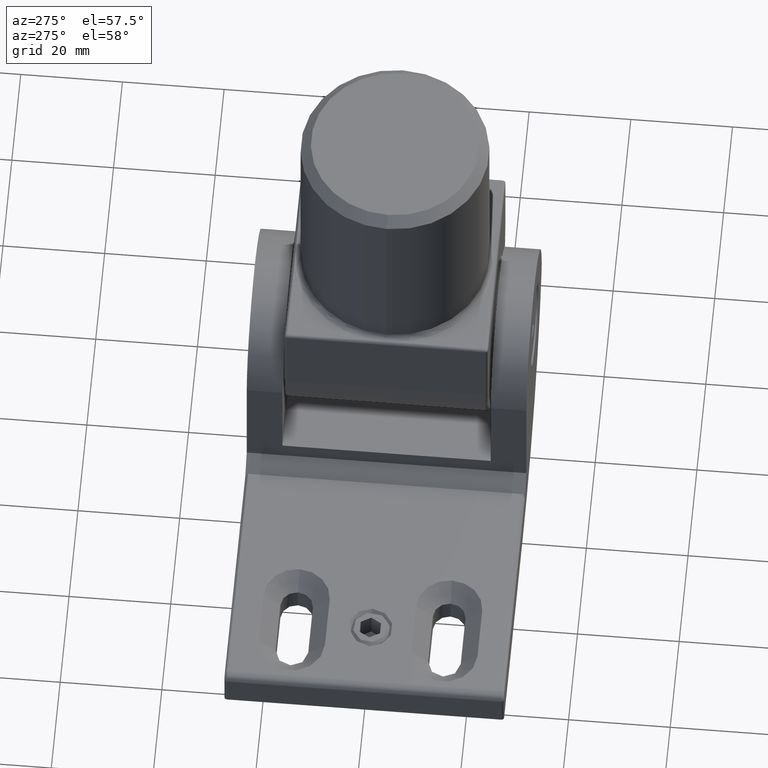
[diagram: clean part render]
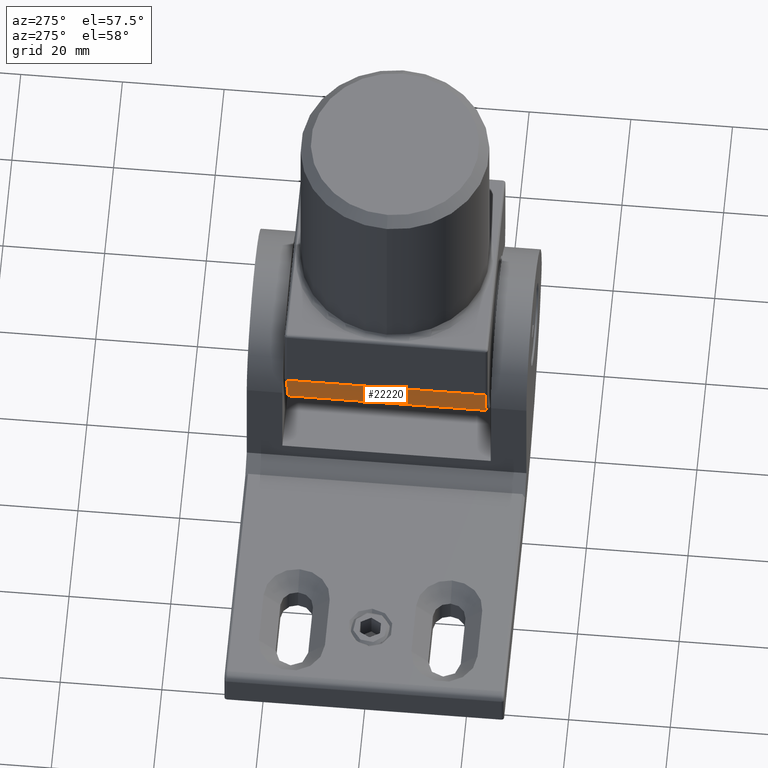
[diagram: same view with one face highlighted and labeled with its STEP entity id]
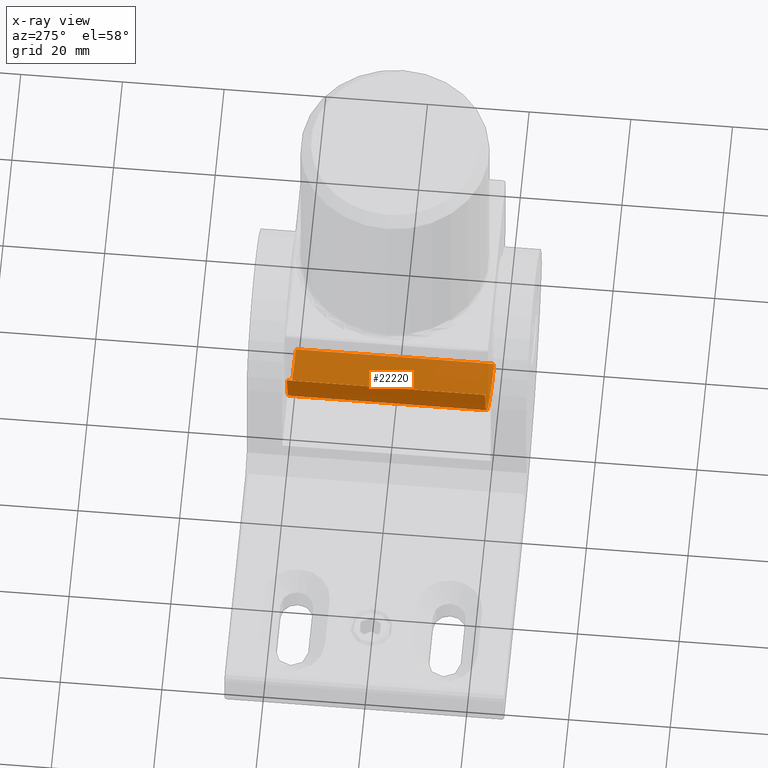
[diagram: x-ray of the same camera — body ghosted, the highlighted face saturated]
A machine part, auxiliary view. The second image highlights one B-rep face of the part: STEP entity #22220.
The next image is the same camera in x-ray: the body ghosted, the highlighted face saturated — about 67% of this face is hidden behind the body in this view.
In plain terms, the highlighted cylindrical surface (partial cylindrical patch) has radius 20 mm, axis along (-0, -1, -0).
Its self-contained STEP definition (entity closure, byte-faithful):
#240 = VECTOR ( 'NONE', #8356, 1000.000000000000000 ) ;
#281 = AXIS2_PLACEMENT_3D ( 'NONE', #11440, #3515, #11097 ) ;
#581 = DIRECTION ( 'NONE',  ( -0.000000000000000000, -1.000000000000000000, -0.000000000000000000 ) ) ;
#807 = ORIENTED_EDGE ( 'NONE', *, *, #5555, .T. ) ;
#819 = CIRCLE ( 'NONE', #281, 20.00000000000000355 ) ;
#2964 = CARTESIAN_POINT ( 'NONE',  ( -20.00000000000000355, 19.50000000000000000, -15.99999999999999645 ) ) ;
#3515 = DIRECTION ( 'NONE',  ( -0.000000000000000000, -1.000000000000000000, -0.000000000000000000 ) ) ;
#4601 = CARTESIAN_POINT ( 'NONE',  ( 0.000000000000000000, -19.50000000000000000, -36.00000000000000000 ) ) ;
#5047 = EDGE_CURVE ( 'NONE', #20888, #7967, #11732, .T. ) ;
#5420 = DIRECTION ( 'NONE',  ( 0.000000000000000000, 0.000000000000000000, 1.000000000000000000 ) ) ;
#5555 = EDGE_CURVE ( 'NONE', #20888, #24237, #819, .T. ) ;
#5677 = CIRCLE ( 'NONE', #9962, 20.00000000000000355 ) ;
#6020 = EDGE_CURVE ( 'NONE', #11799, #7967, #5677, .T. ) ;
#7257 = VECTOR ( 'NONE', #17697, 1000.000000000000000 ) ;
#7967 = VERTEX_POINT ( 'NONE', #10529 ) ;
#8356 = DIRECTION ( 'NONE',  ( -0.000000000000000000, -1.000000000000000000, -0.000000000000000000 ) ) ;
#9962 = AXIS2_PLACEMENT_3D ( 'NONE', #22646, #24357, #5420 ) ;
#10529 = CARTESIAN_POINT ( 'NONE',  ( -20.00000000000000355, -19.50000000000000000, -15.99999999999999645 ) ) ;
#10835 = ORIENTED_EDGE ( 'NONE', *, *, #6020, .T. ) ;
#11097 = DIRECTION ( 'NONE',  ( 0.000000000000000000, 0.000000000000000000, 1.000000000000000000 ) ) ;
#11440 = CARTESIAN_POINT ( 'NONE',  ( 0.000000000000000000, 19.50000000000000000, -15.99999999999999289 ) ) ;
#11732 = LINE ( 'NONE', #12143, #240 ) ;
#11799 = VERTEX_POINT ( 'NONE', #4601 ) ;
#12143 = CARTESIAN_POINT ( 'NONE',  ( -20.00000000000000355, 20.00000000000000000, -15.99999999999999645 ) ) ;
#12309 = CARTESIAN_POINT ( 'NONE',  ( 0.000000000000000000, 19.50000000000000000, -36.00000000000000000 ) ) ;
#13179 = AXIS2_PLACEMENT_3D ( 'NONE', #23933, #581, #14100 ) ;
#14100 = DIRECTION ( 'NONE',  ( 0.000000000000000000, 0.000000000000000000, -1.000000000000000000 ) ) ;
#15858 = CYLINDRICAL_SURFACE ( 'NONE', #13179, 20.00000000000000355 ) ;
#16458 = EDGE_CURVE ( 'NONE', #24237, #11799, #22675, .T. ) ;
#17697 = DIRECTION ( 'NONE',  ( -0.000000000000000000, -1.000000000000000000, -0.000000000000000000 ) ) ;
#19485 = ORIENTED_EDGE ( 'NONE', *, *, #16458, .T. ) ;
#20888 = VERTEX_POINT ( 'NONE', #2964 ) ;
#21495 = CARTESIAN_POINT ( 'NONE',  ( 0.000000000000000000, 20.00000000000000000, -36.00000000000000000 ) ) ;
#22220 = ADVANCED_FACE ( 'NONE', ( #23766 ), #15858, .T. ) ;
#22626 = EDGE_LOOP ( 'NONE', ( #807, #19485, #10835, #24933 ) ) ;
#22646 = CARTESIAN_POINT ( 'NONE',  ( 0.000000000000000000, -19.50000000000000000, -15.99999999999999289 ) ) ;
#22675 = LINE ( 'NONE', #21495, #7257 ) ;
#23766 = FACE_OUTER_BOUND ( 'NONE', #22626, .T. ) ;
#23933 = CARTESIAN_POINT ( 'NONE',  ( 0.000000000000000000, 20.00000000000000000, -15.99999999999999289 ) ) ;
#24237 = VERTEX_POINT ( 'NONE', #12309 ) ;
#24357 = DIRECTION ( 'NONE',  ( 0.000000000000000000, 1.000000000000000000, 0.000000000000000000 ) ) ;
#24933 = ORIENTED_EDGE ( 'NONE', *, *, #5047, .F. ) ;